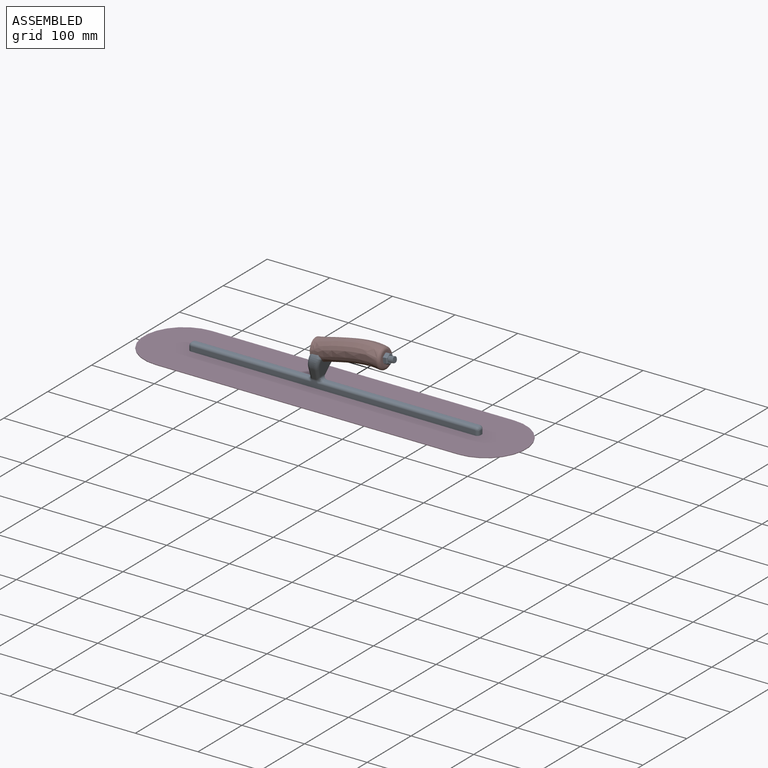
[diagram: assembled view]
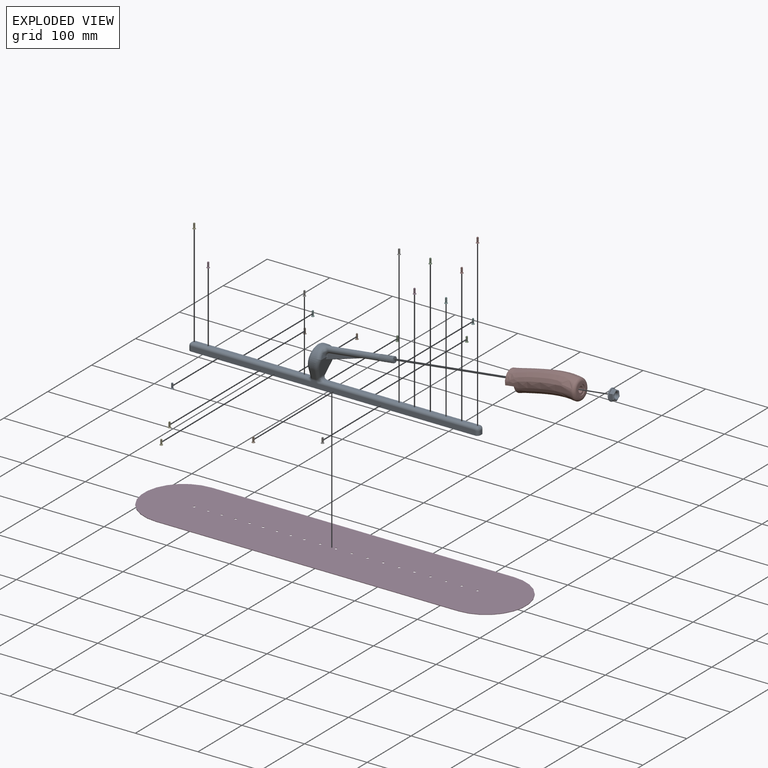
[diagram: exploded view]
GUIDED TOUR — MATED ASSEMBLY (Onshape document fba0291dfb014aeca8c67f5f, AutoMate assembly fba0291dfb014aeca8c67f5f_99a15173166ce8c87920e381_2d46dbb9390a50c2f02a5862_default)

This assembly has 24 components, labeled P0..P23 below (a component is one placed occurrence of a part; the same part can appear more than once), held together by 23 mates. A mate is a constraint between two components; its type names the relative motion it leaves free:
  FASTENED — locks the two components together rigidly (no relative motion).
Axis/direction vectors are unit vectors and 'through' points are millimeter coordinates, both in the assembly's world frame.

MATES
  1. FASTENED "Fastened 13": P5 <-> P19, direction (0.000, 0.000, -1.000) through (25.44, 0.00, -0.91) mm
  2. FASTENED "Fastened 18": P18 <-> P19, direction (0.000, 0.000, -1.000) through (150.82, 0.00, -0.91) mm
  3. FASTENED "Fastened 16": P22 <-> P19, direction (0.000, 0.000, -1.000) through (100.86, 0.00, -0.91) mm
  4. FASTENED "Fastened 12": P1 <-> P19, direction (0.000, 0.000, -1.000) through (0.17, 0.00, -0.91) mm
  5. FASTENED "Fastened 1": P19 <-> P0, direction (0.000, 0.000, 1.000) through (-226.16, 0.00, 0.00) mm
  6. FASTENED "Fastened 3": P11 <-> P19, direction (0.000, 0.000, -1.000) through (-203.81, 0.00, -0.91) mm
  7. FASTENED "Fastened 22": P7 <-> P0, direction (-0.993, 0.000, -0.122) through (-16.65, -0.06, 57.83) mm
  8. FASTENED "Fastened 8": P12 <-> P19, direction (0.000, 0.000, -1.000) through (-94.01, 0.00, -0.91) mm
  9. FASTENED "Fastened 6": P9 <-> P19, direction (0.000, 0.000, -1.000) through (-137.67, 0.00, -0.91) mm
  10. FASTENED "Fastened 15": P14 <-> P19, direction (0.000, 0.000, -1.000) through (75.56, 0.00, -0.91) mm
  11. FASTENED "Fastened 2": P20 <-> P19, direction (0.000, 0.000, -1.000) through (-226.16, 0.00, -0.91) mm
  12. FASTENED "Fastened 17": P3 <-> P19, direction (0.000, 0.000, -1.000) through (125.52, 0.00, -0.91) mm
  13. FASTENED "Fastened 10": P6 <-> P19, direction (0.000, 0.000, -1.000) through (-50.19, 0.00, -0.91) mm
  14. FASTENED "Fastened 9": P17 <-> P19, direction (0.000, 0.000, -1.000) through (-71.93, 0.00, -0.91) mm
  15. FASTENED "Fastened 23": P16 <-> P7, direction (-0.993, 0.000, -0.122) through (78.95, -0.06, 69.57) mm
  16. FASTENED "Fastened 5": P13 <-> P19, direction (0.000, 0.000, -1.000) through (-159.92, 0.00, -0.91) mm
  17. FASTENED "Fastened 19": P21 <-> P19, direction (0.000, 0.000, -1.000) through (175.86, 0.00, -0.91) mm
  18. FASTENED "Fastened 7": P4 <-> P19, direction (0.000, 0.000, -1.000) through (-116.05, 0.00, -0.91) mm
  19. FASTENED "Fastened 21": P23 <-> P19, direction (0.000, 0.000, -1.000) through (226.13, 0.00, -0.91) mm
  20. FASTENED "Fastened 20": P15 <-> P19, direction (0.000, 0.000, -1.000) through (200.93, 0.00, -0.91) mm
  21. FASTENED "Fastened 4": P8 <-> P19, direction (0.000, 0.000, -1.000) through (-182.09, 0.00, -0.91) mm
  22. FASTENED "Fastened 14": P2 <-> P19, direction (0.000, 0.000, -1.000) through (50.54, 0.00, -0.91) mm
  23. FASTENED "Fastened 11": P10 <-> P19, direction (0.000, 0.000, -1.000) through (-24.97, 0.00, -0.91) mm

ASSEMBLY ORDER
  1. P0 — the base component [order heuristic]
  2. P7 — core [order heuristic]
  3. P16 — core [order heuristic]
  4. P6 [order verified]
  5. P22 [order verified]
  6. P18 [order verified]
  7. P15 [order verified]
  8. P11 [order verified]
  9. P1 [order verified]
  10. P21 [order verified]
  11. P3 [order verified]
  12. P23 [order verified]
  13. P20 [order verified]
  14. P12 [order verified]
  15. P8 [order verified]
  16. P4 [order verified]
  17. P14 [order verified]
  18. P2 [order verified]
  19. P5 [order verified]
  20. P17 [order verified]
  21. P10 [order verified]
  22. P9 [order verified]
  23. P13 [order verified]
  24. P19 [order verified]
(P1, P3, P6, P11, P15, P18, P20, P21, P22, P23 verified with a relaxed clearance tolerance: the source model stores slight part interference there.)
Order-tag legend:
  [order verified] — this step's position reverses a verified removal order: the component was checked to insert without passing through the ones already placed.
  [order heuristic] — the first 3 components form the assembly's core: parts whose collision-free extraction could not be verified, listed in mate-graph order.

Of the 24 components, 1 carries the full construction recipe — the FeatureScript program that regenerates the part's solid from scratch; the rest are supplied as boundary geometry only.
Because this assembly has more than 12 components, the tour below covers the 12 most significant ones individually (every recipe-attached component first, then the largest by part volume), in assembly order; the remaining 12 are summarized together in a grouped section at the end.
Each toured component is shown spotlighted twice — in the assembled view, then in the exploded view, where a leader line traces a displaced component back to its assembled socket (saturated green if recipe-attached, orange if geometry-only; every other component desaturated gray) — followed by its recipe or geometry summary and the mates that hold it.
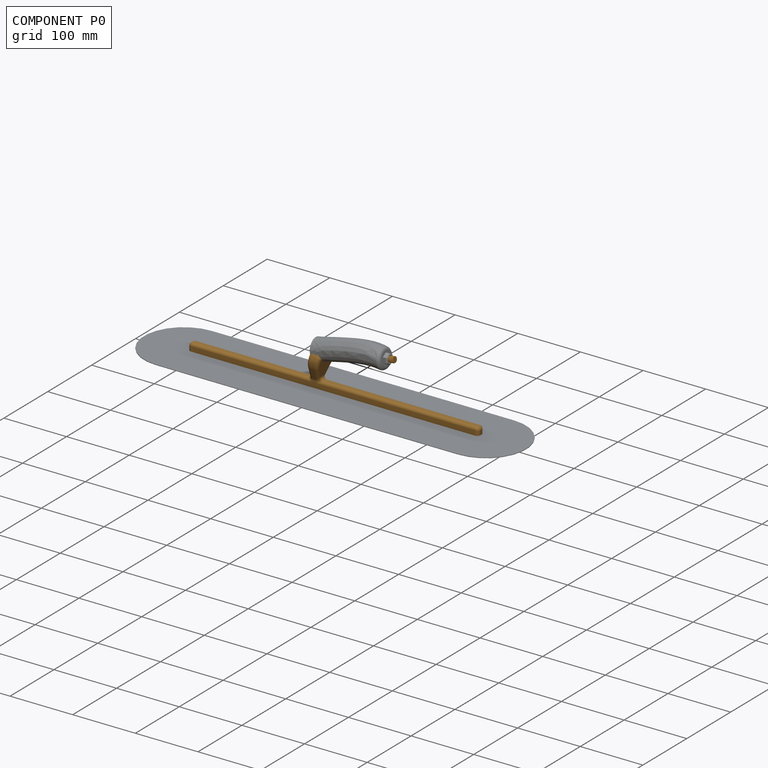
[diagram: component P0 — assembled]
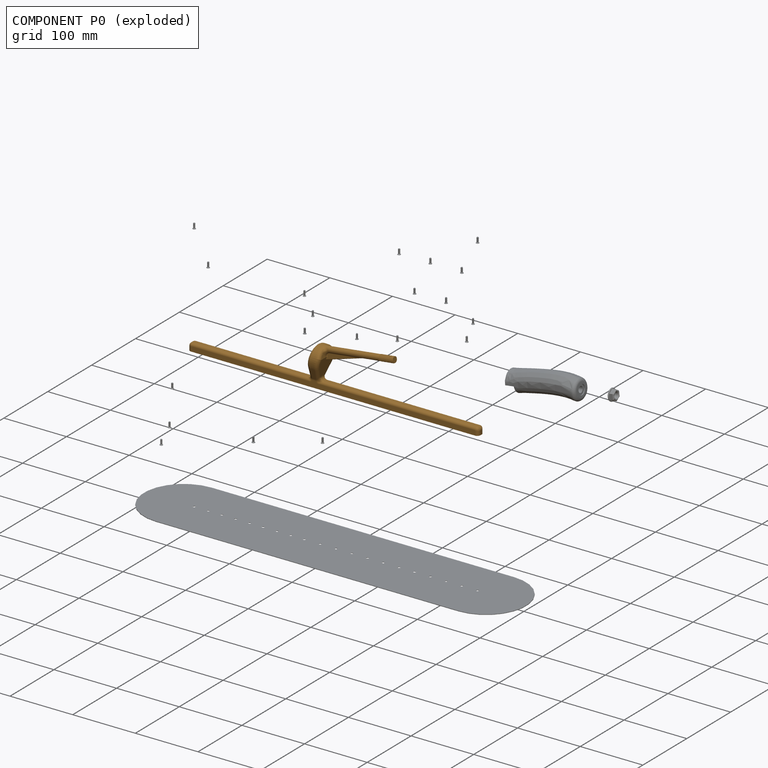
[diagram: component P0 — exploded]
COMPONENT P0 — geometry summary (no construction recipe available for this part):
  bounding box: 464.3 x 77.7 x 41.5 mm
  B-rep topology: 1 solid, 130 faces, 606 edges
  volume: 99625 mm^3 (7% of its bounding box)
  symmetry: mirror-symmetric across its y mid-plane
Held by: FASTENED mate "Fastened 1" to P19; FASTENED mate "Fastened 22" to P7.
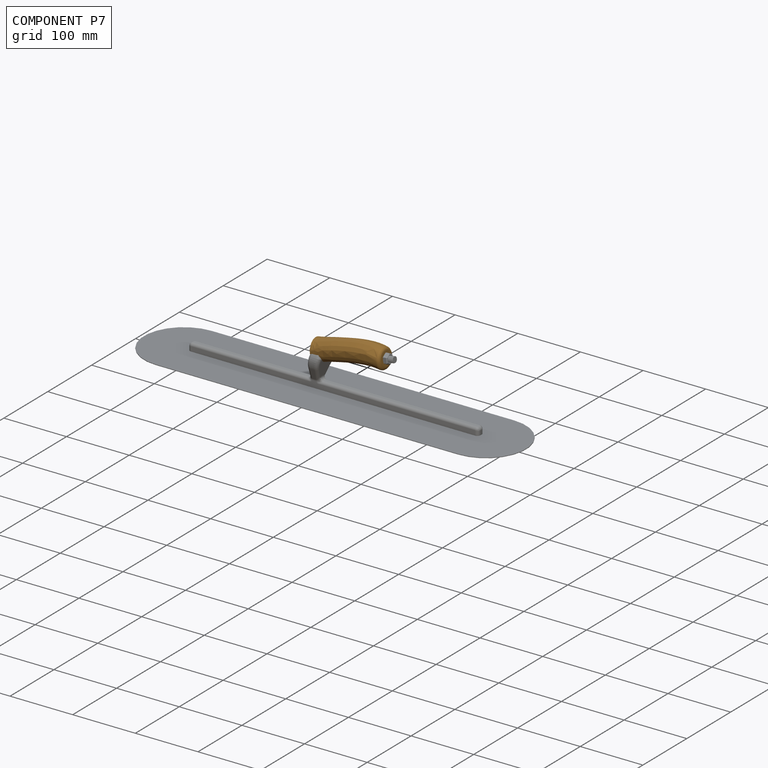
[diagram: component P7 — assembled]
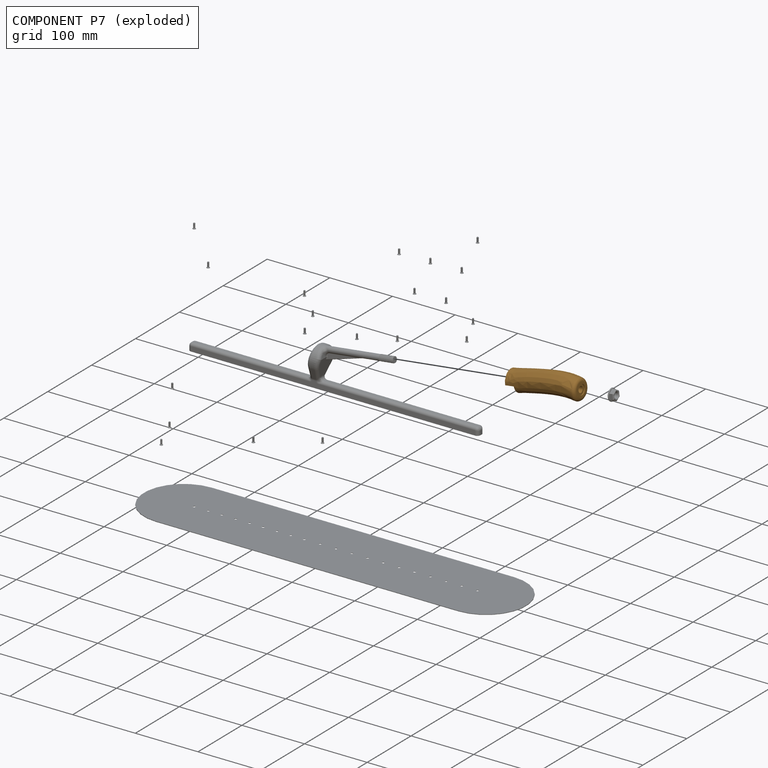
[diagram: component P7 — exploded]
COMPONENT P7 — geometry summary (no construction recipe available for this part):
  bounding box: 111.9 x 38.8 x 33.2 mm
  B-rep topology: 0 solids, 10 faces, 39 edges
  volume: 89827 mm^3 (62% of its bounding box)
  symmetry: mirror-symmetric across its y mid-plane
Held by: FASTENED mate "Fastened 22" to P0; FASTENED mate "Fastened 23" to P16.
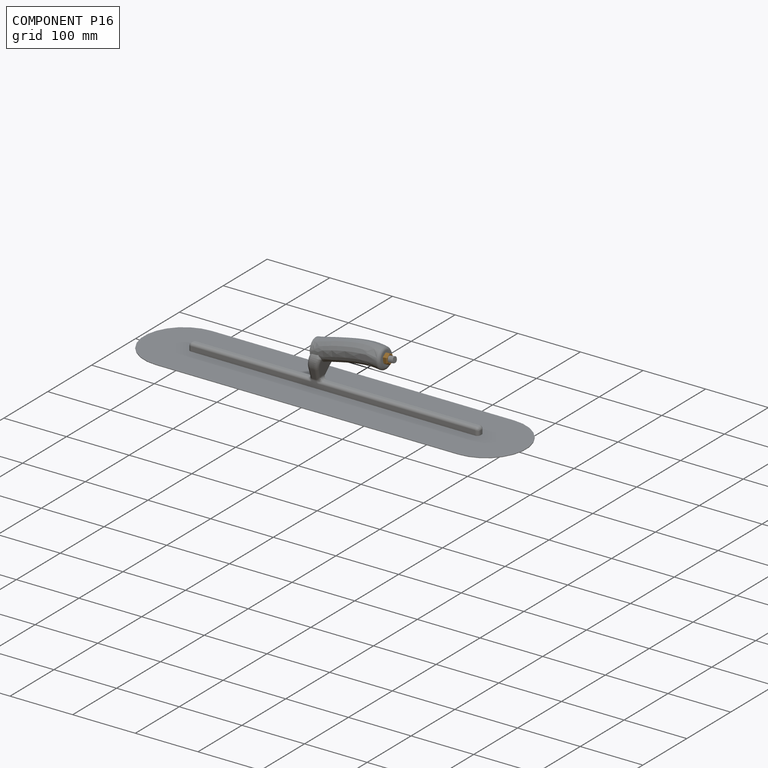
[diagram: component P16 — assembled]
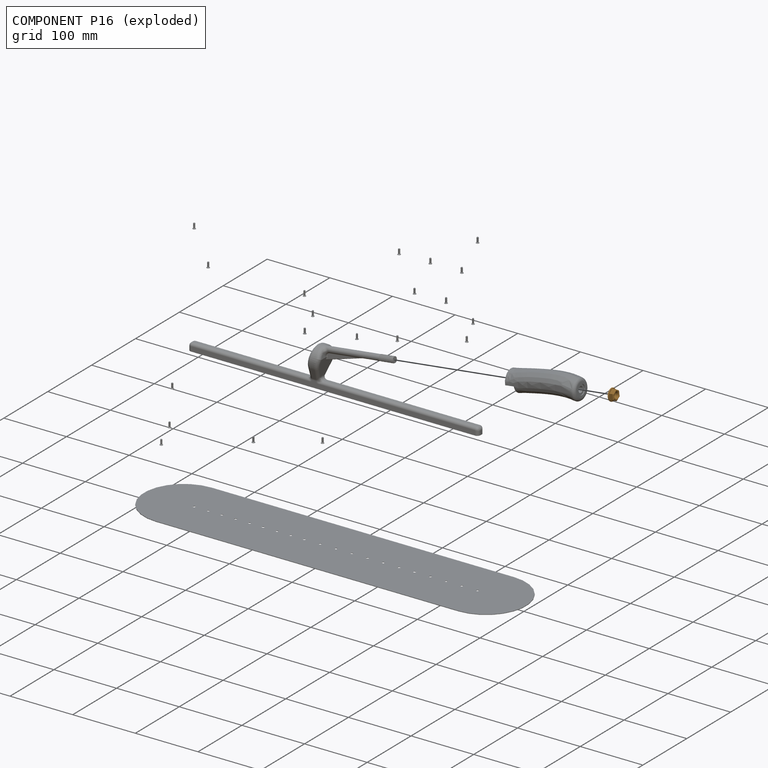
[diagram: component P16 — exploded]
COMPONENT P16 — geometry summary (no construction recipe available for this part):
  bounding box: 20.3 x 20.3 x 7.8 mm
  B-rep topology: 1 solid, 25 faces, 118 edges
  volume: 1025 mm^3 (32% of its bounding box)
  symmetry: 6-fold rotationally symmetric about the z axis; mirror-symmetric across its x mid-plane, y mid-plane
Held by: FASTENED mate "Fastened 23" to P7.
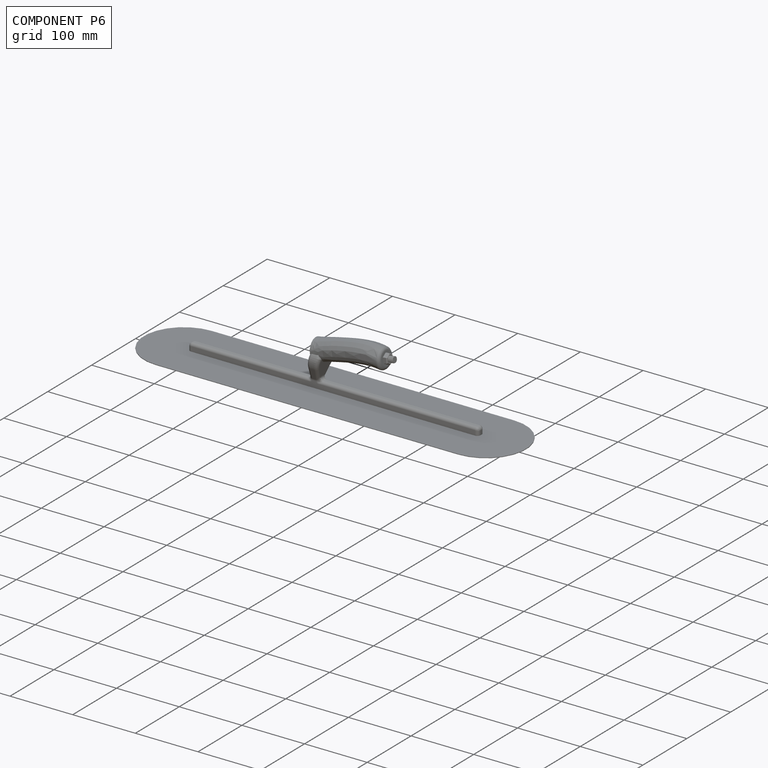
[diagram: component P6 — assembled]
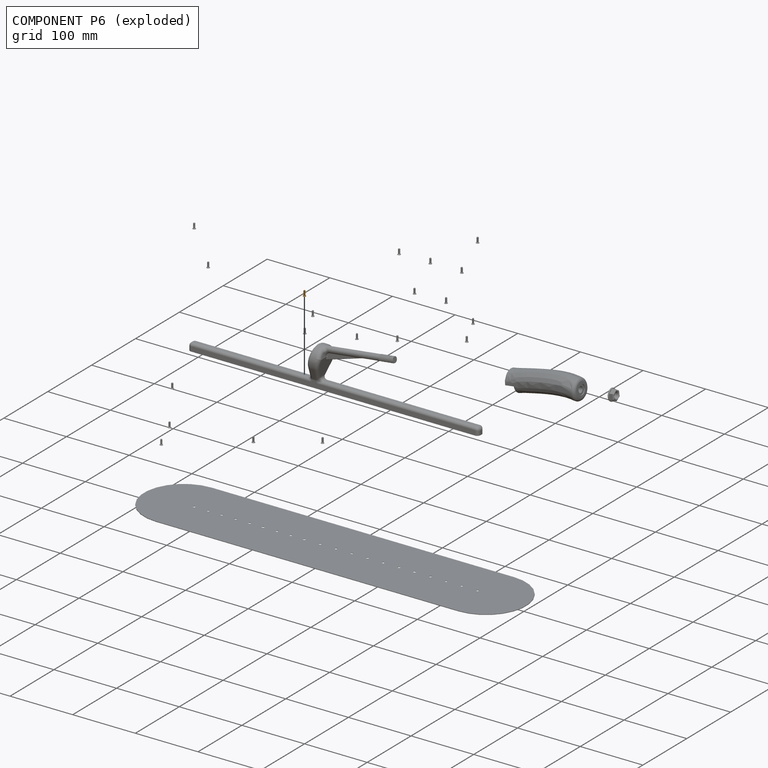
[diagram: component P6 — exploded]
COMPONENT P6 — geometry summary (no construction recipe available for this part):
  bounding box: 8.3 x 4.8 x 4.8 mm
  B-rep topology: 1 solid, 165 faces, 746 edges
  volume: 56 mm^3 (29% of its bounding box)
  symmetry: revolution-symmetric about the z axis through its bounding-box center; mirror-symmetric across its x mid-plane, y mid-plane
Held by: FASTENED mate "Fastened 10" to P19.
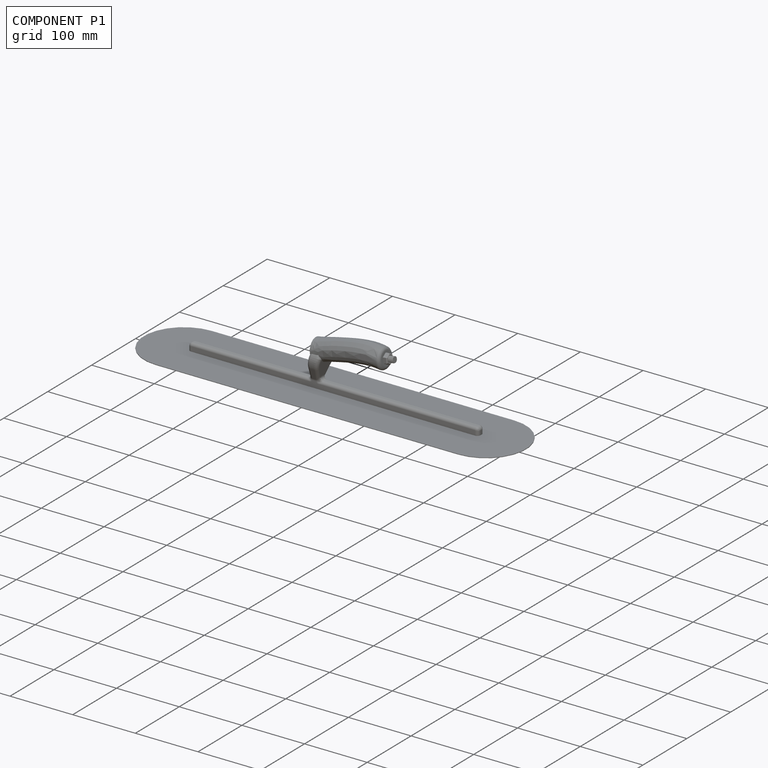
[diagram: component P1 — assembled]
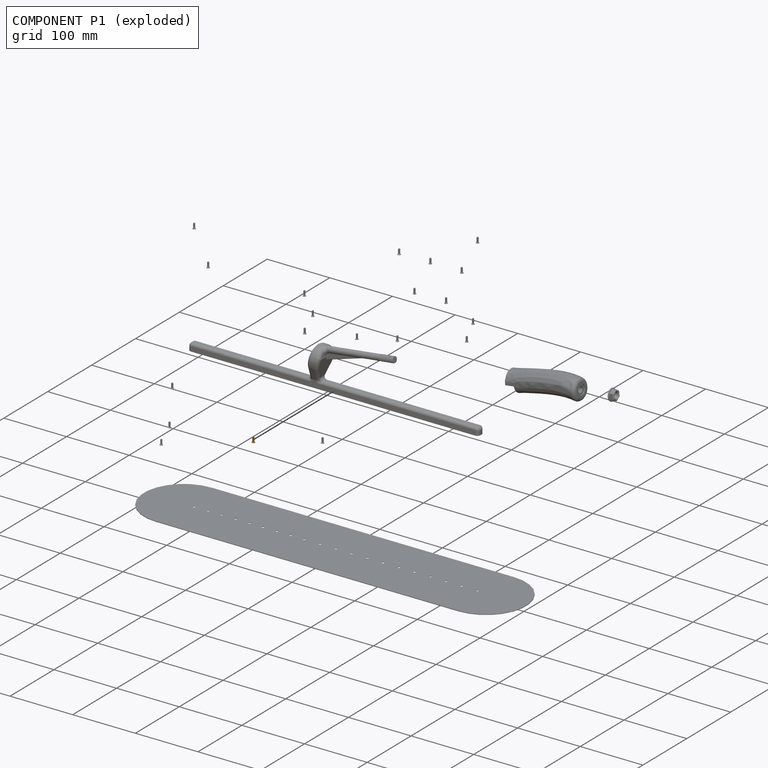
[diagram: component P1 — exploded]
COMPONENT P1 — geometry summary (no construction recipe available for this part):
  bounding box: 8.3 x 4.8 x 4.8 mm
  B-rep topology: 1 solid, 165 faces, 746 edges
  volume: 56 mm^3 (29% of its bounding box)
  symmetry: revolution-symmetric about the z axis through its bounding-box center; mirror-symmetric across its x mid-plane, y mid-plane
Held by: FASTENED mate "Fastened 12" to P19.
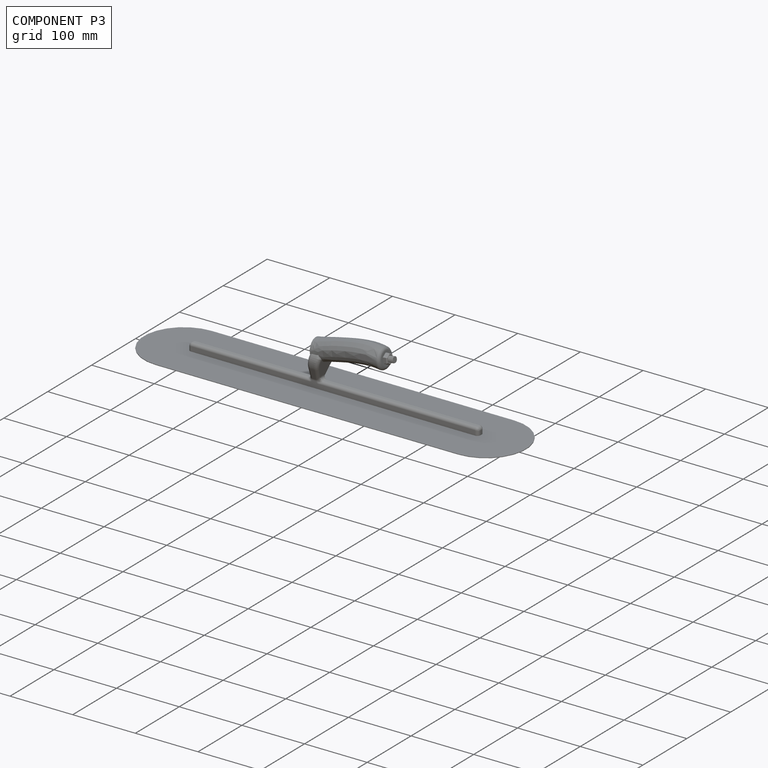
[diagram: component P3 — assembled]
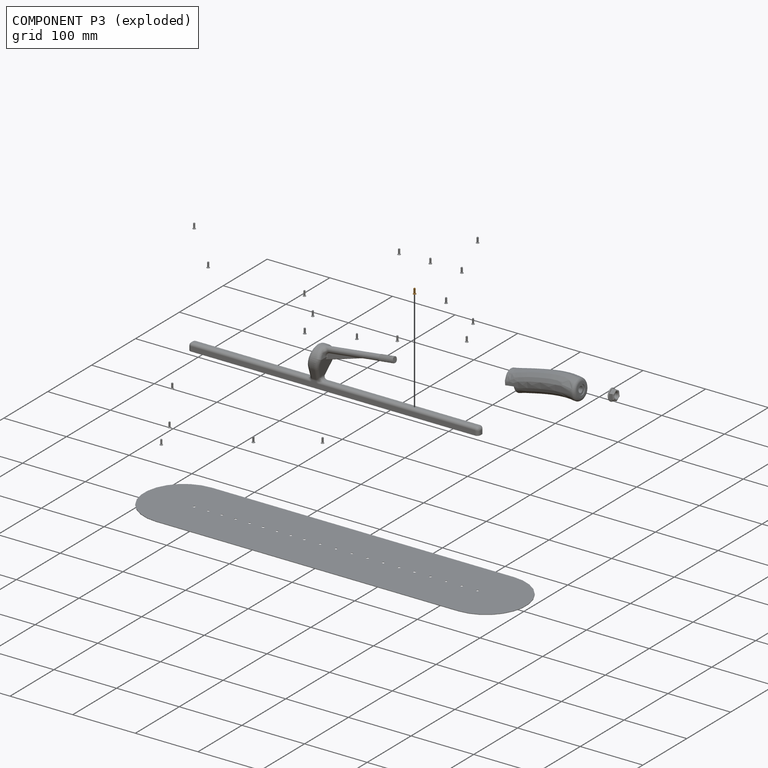
[diagram: component P3 — exploded]
COMPONENT P3 — geometry summary (no construction recipe available for this part):
  bounding box: 8.3 x 4.8 x 4.8 mm
  B-rep topology: 1 solid, 165 faces, 746 edges
  volume: 56 mm^3 (29% of its bounding box)
  symmetry: revolution-symmetric about the z axis through its bounding-box center; mirror-symmetric across its x mid-plane, y mid-plane
Held by: FASTENED mate "Fastened 17" to P19.
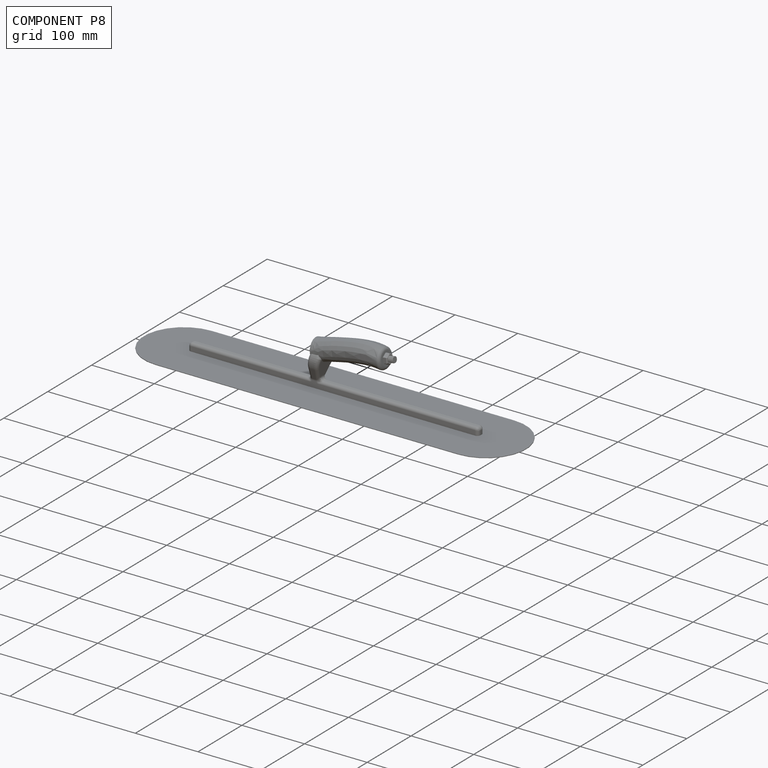
[diagram: component P8 — assembled]
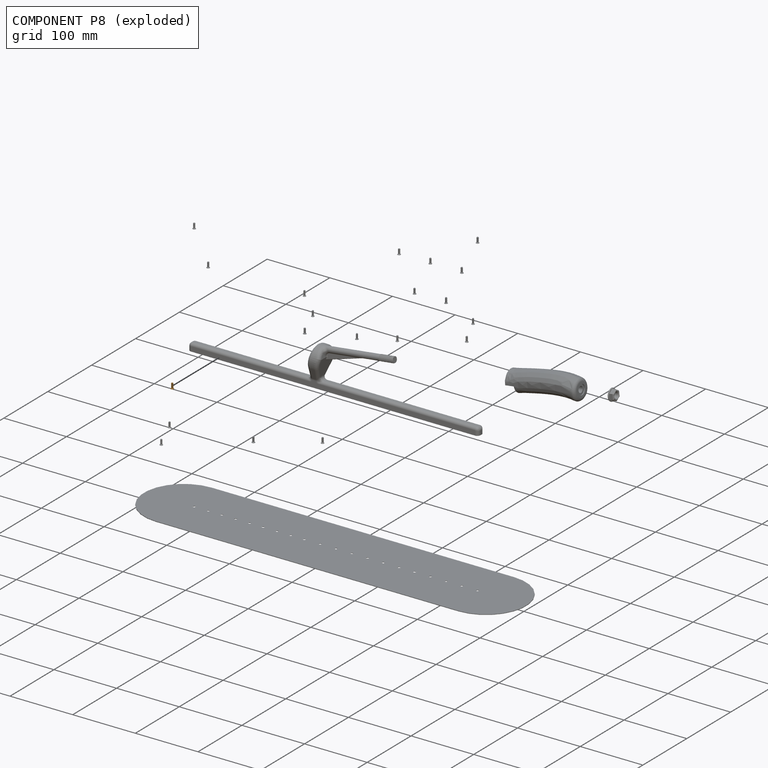
[diagram: component P8 — exploded]
COMPONENT P8 — geometry summary (no construction recipe available for this part):
  bounding box: 8.3 x 4.8 x 4.8 mm
  B-rep topology: 1 solid, 165 faces, 746 edges
  volume: 56 mm^3 (29% of its bounding box)
  symmetry: revolution-symmetric about the z axis through its bounding-box center; mirror-symmetric across its x mid-plane, y mid-plane
Held by: FASTENED mate "Fastened 4" to P19.
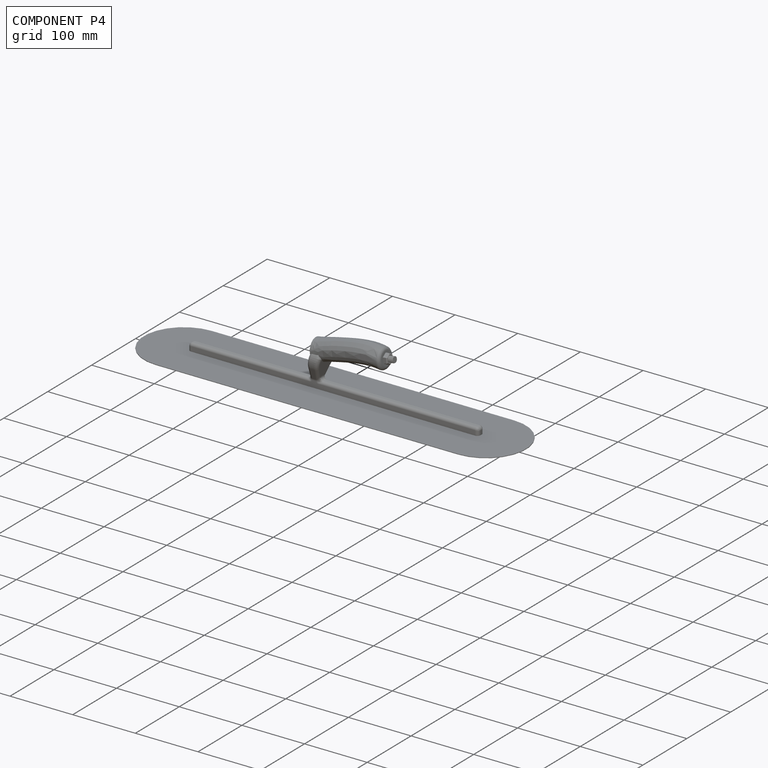
[diagram: component P4 — assembled]
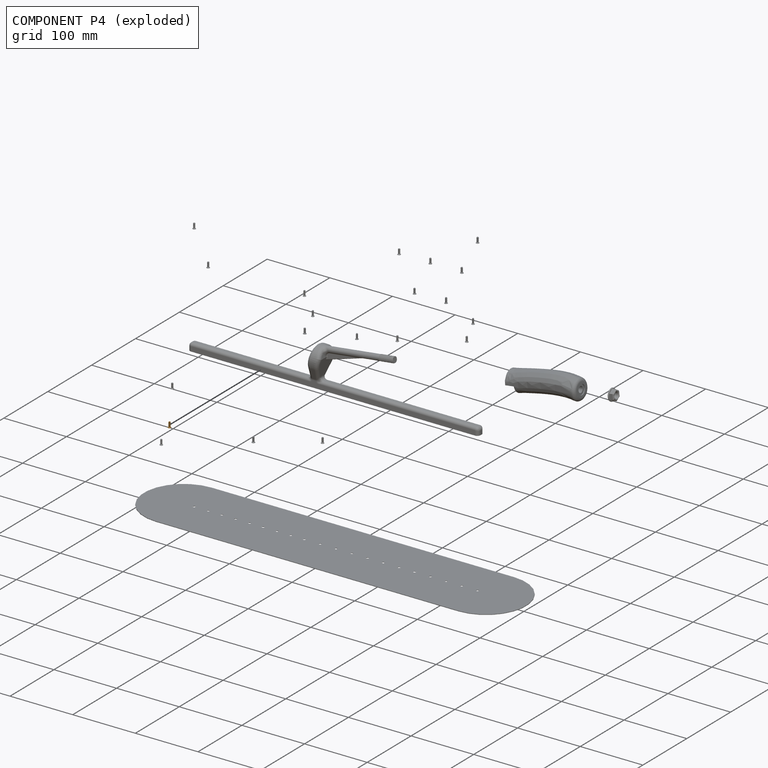
[diagram: component P4 — exploded]
COMPONENT P4 — geometry summary (no construction recipe available for this part):
  bounding box: 8.3 x 4.8 x 4.8 mm
  B-rep topology: 1 solid, 165 faces, 746 edges
  volume: 56 mm^3 (29% of its bounding box)
  symmetry: revolution-symmetric about the z axis through its bounding-box center; mirror-symmetric across its x mid-plane, y mid-plane
Held by: FASTENED mate "Fastened 7" to P19.
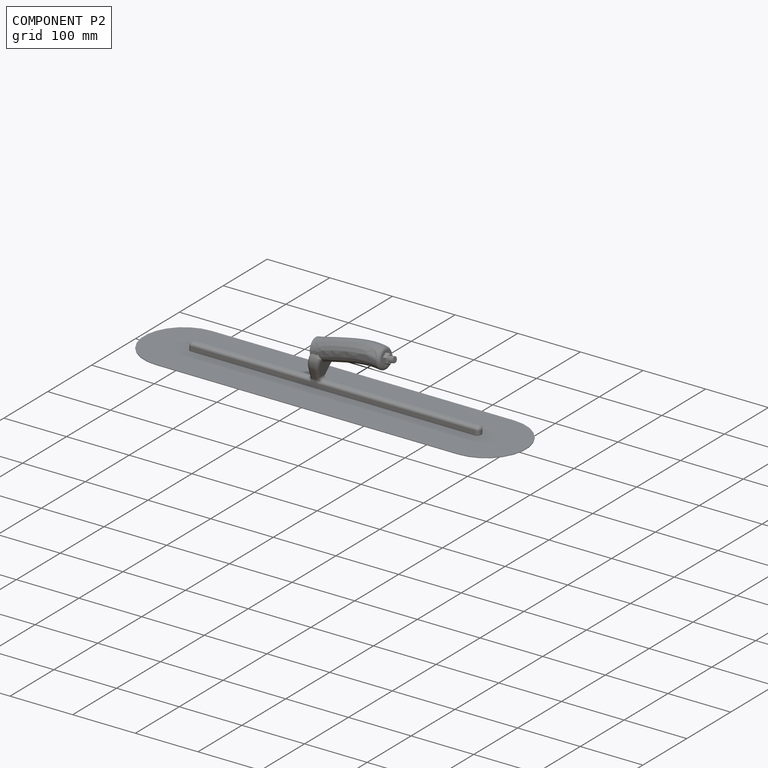
[diagram: component P2 — assembled]
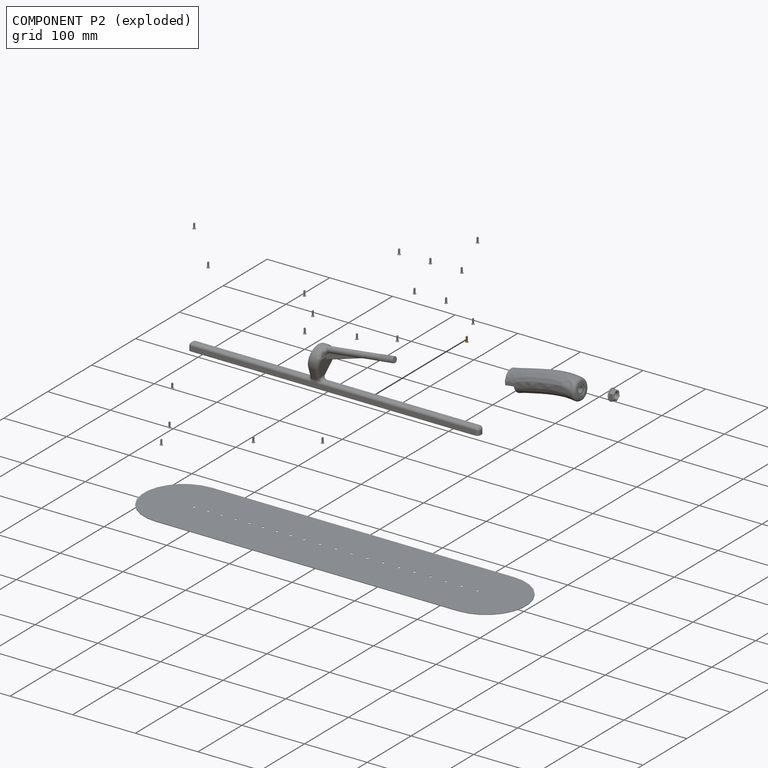
[diagram: component P2 — exploded]
COMPONENT P2 — geometry summary (no construction recipe available for this part):
  bounding box: 8.3 x 4.8 x 4.8 mm
  B-rep topology: 1 solid, 165 faces, 746 edges
  volume: 56 mm^3 (29% of its bounding box)
  symmetry: revolution-symmetric about the z axis through its bounding-box center; mirror-symmetric across its x mid-plane, y mid-plane
Held by: FASTENED mate "Fastened 14" to P19.
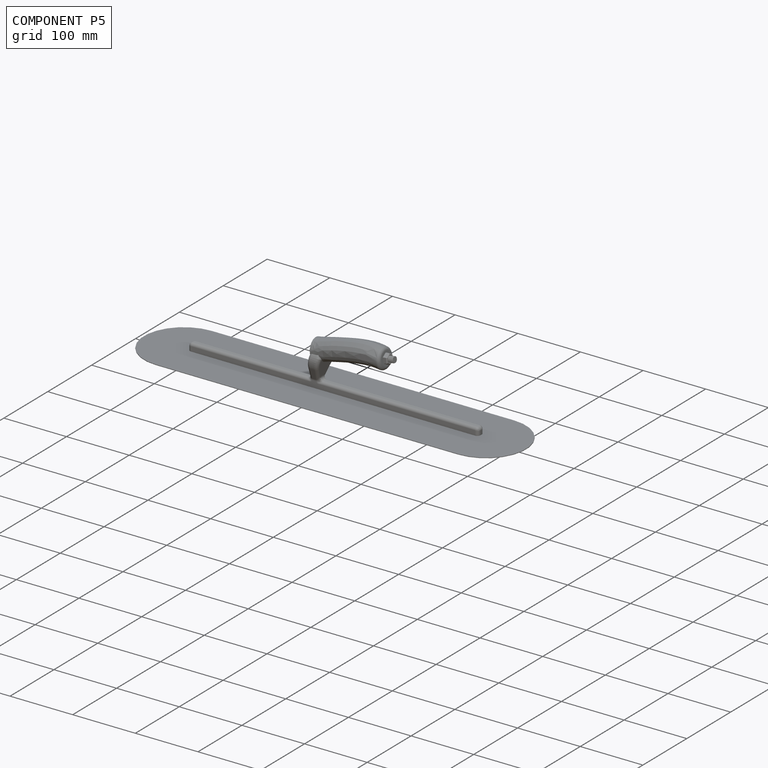
[diagram: component P5 — assembled]
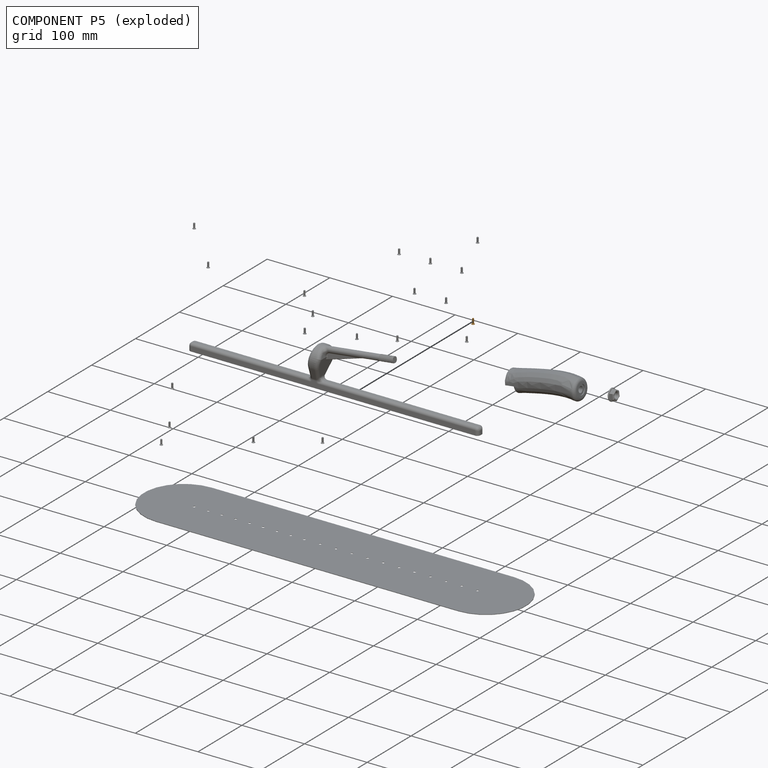
[diagram: component P5 — exploded]
COMPONENT P5 — geometry summary (no construction recipe available for this part):
  bounding box: 8.3 x 4.8 x 4.8 mm
  B-rep topology: 1 solid, 165 faces, 746 edges
  volume: 56 mm^3 (29% of its bounding box)
  symmetry: revolution-symmetric about the z axis through its bounding-box center; mirror-symmetric across its x mid-plane, y mid-plane
Held by: FASTENED mate "Fastened 13" to P19.
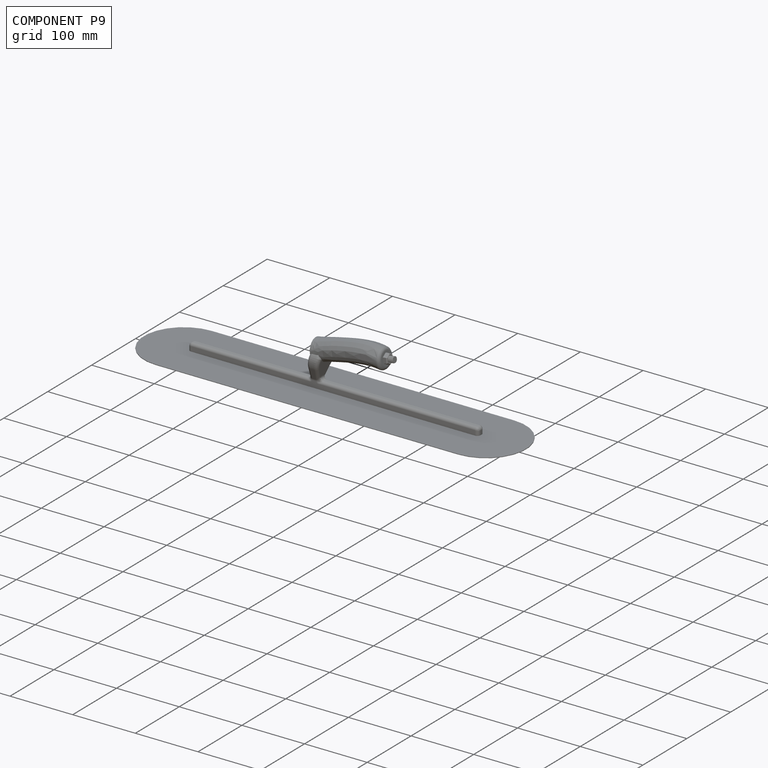
[diagram: component P9 — assembled]
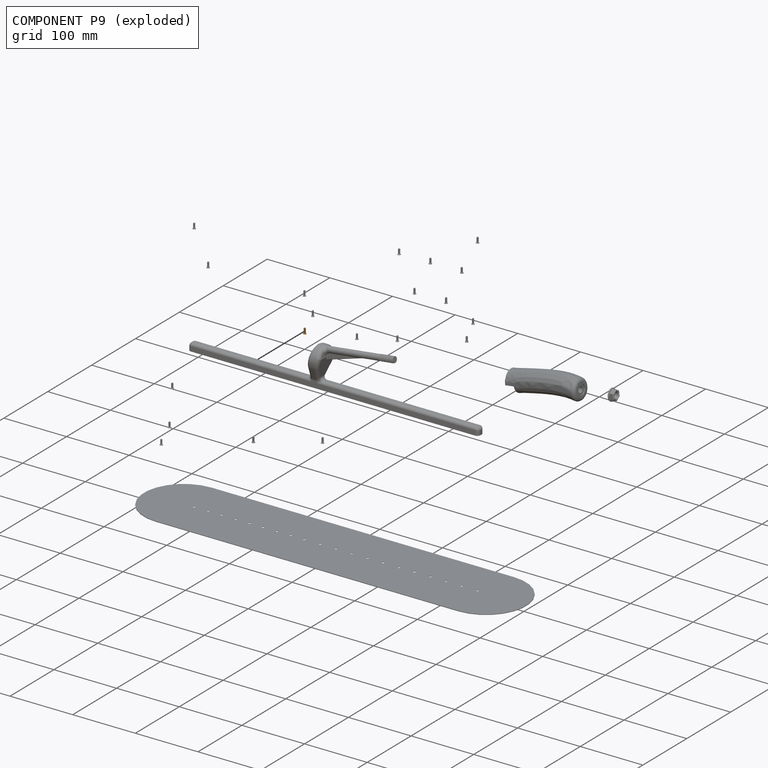
[diagram: component P9 — exploded]
COMPONENT P9 — geometry summary (no construction recipe available for this part):
  bounding box: 8.3 x 4.8 x 4.8 mm
  B-rep topology: 1 solid, 165 faces, 746 edges
  volume: 56 mm^3 (29% of its bounding box)
  symmetry: revolution-symmetric about the z axis through its bounding-box center; mirror-symmetric across its x mid-plane, y mid-plane
Held by: FASTENED mate "Fastened 6" to P19.
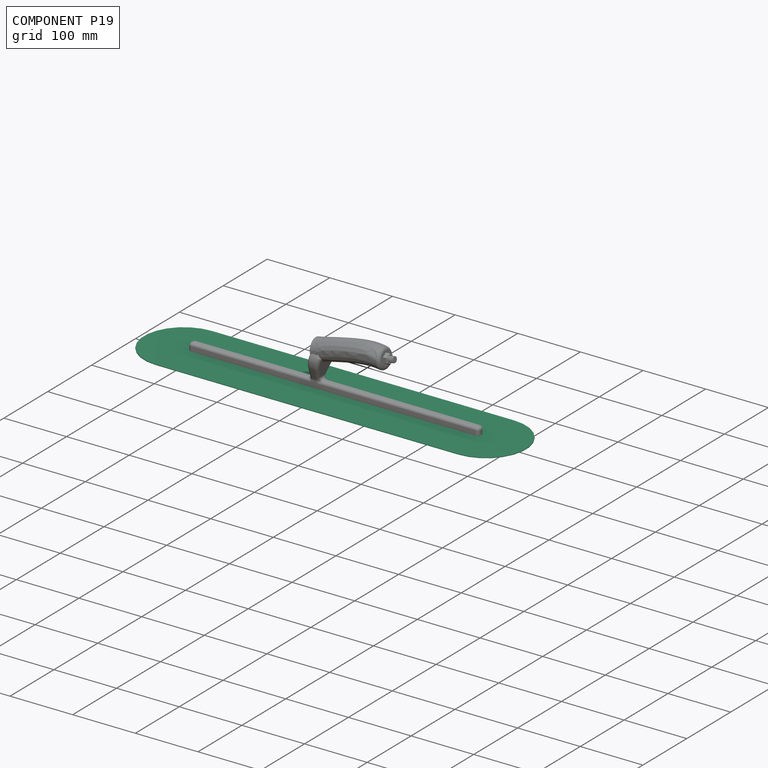
[diagram: component P19 — assembled]
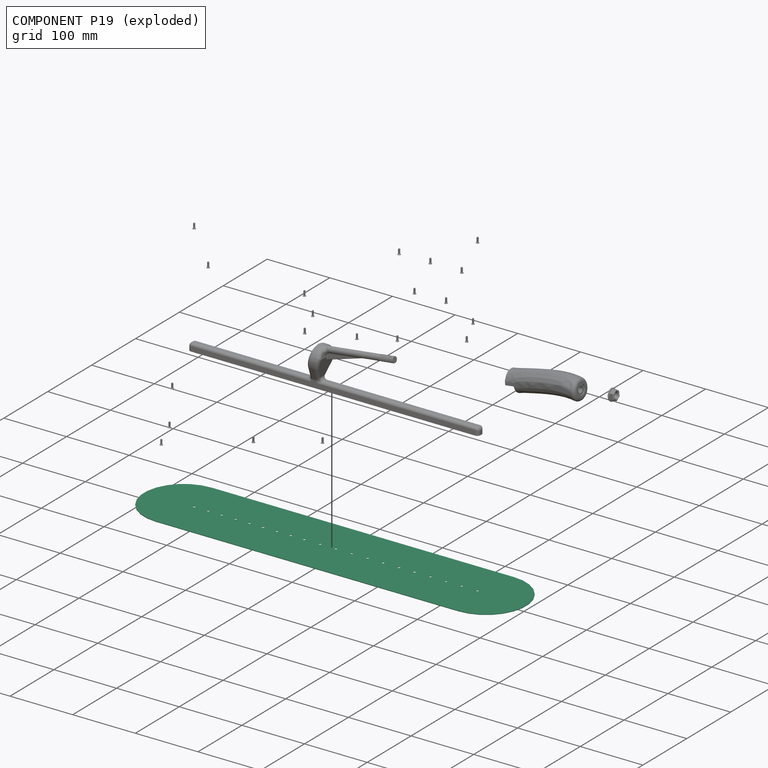
[diagram: component P19 — exploded]
COMPONENT P19 — recipe-attached (CADFS 00134731, mesh-verified: the recipe's output STEP matches this component's geometry to below the mesh-comparison resolution (tessellation chordal tolerance ~0.933 mm)).
Held by: FASTENED mate "Fastened 13" to P5; FASTENED mate "Fastened 18" to P18; FASTENED mate "Fastened 16" to P22; FASTENED mate "Fastened 12" to P1; FASTENED mate "Fastened 1" to P0; FASTENED mate "Fastened 3" to P11; FASTENED mate "Fastened 8" to P12; FASTENED mate "Fastened 6" to P9; FASTENED mate "Fastened 15" to P14; FASTENED mate "Fastened 2" to P20; FASTENED mate "Fastened 17" to P3; FASTENED mate "Fastened 10" to P6; FASTENED mate "Fastened 9" to P17; FASTENED mate "Fastened 5" to P13; FASTENED mate "Fastened 19" to P21; FASTENED mate "Fastened 7" to P4; FASTENED mate "Fastened 21" to P23; FASTENED mate "Fastened 20" to P15; FASTENED mate "Fastened 4" to P8; FASTENED mate "Fastened 14" to P2; FASTENED mate "Fastened 11" to P10.
Construction recipe (FeatureScript — the CAD program that rebuilds this solid; sketch coordinates are in the units given by the * unit suffixes, e.g. mm):

FeatureScript 1511;
import(path : "onshape/std/geometry.fs", version : "1511.0");
import(path : "onshape/std/common.fs", version : "1511.0");
const mm = millimeter;
const VERTEX = EntityType.VERTEX;
const EDGE = EntityType.EDGE;
const FACE = EntityType.FACE;
const BODY = EntityType.BODY;
function v(x, y){return vector(x, y);}
function OD(order){return orderDisambiguation(order);}
function OSD(set){return originalSetDisambiguation(set);}
function TD(topology){return topologyDisambiguation(topology);}
function TDD(query){return trueDependencyDisambiguation(query);}
function sQuery(a, b, c) {return sketchEntityQuery(a, b, c);}

annotation { "Feature Type Name" : "Feature", "Feature Type Description" : "" }
export const myFeature = defineFeature(function(context is Context, id is Id, definition is map)
    precondition{}
    {
        {
            var Q0;
            Q0=qCreatedBy(makeId("Top.planeOp"),FACE);
            var sketch = newSketch(context, id + "F0", { "sketchPlane" : qUnion([Q0])});
            skLineSegment(sketch, "E0", {"start": v(-241.3, 0) * mm, "end": v(241.3, 0) * mm, "construction": true});
            skArc(sketch, "E1.0.startCap", {"start": v(-241.3, -63.5) * mm, "mid": v(-304.8, 0) * mm, "end": v(-241.3, 63.5) * mm});
            skArc(sketch, "E1.0.endCap", {"start": v(241.3, 63.5) * mm, "mid": v(304.8, 0) * mm, "end": v(241.3, -63.5) * mm});
            skLineSegment(sketch, "E1.0.left", {"start": v(-241.3, 63.5) * mm, "end": v(241.3, 63.5) * mm});
            skLineSegment(sketch, "E1.0.right", {"start": v(-241.3, -63.5) * mm, "end": v(241.3, -63.5) * mm});
            skSolve(sketch);
        }
        {
            var Q0;
            Q0 = qSketchRegion(id + "F0", true);
            extrude(context, id + "F1", {"entities" : qUnion([Q0]), "depth" : 0.91 * mm});
        }
        {
            var Q0;
            Q0=makeQuery(id+"F1.opExtrude","CAP_FACE",FACE,{"disambiguationData":[OSD([sQuery(id+"F0.wireOp",EDGE,"E1.0.startCap"),sQuery(id+"F0.wireOp",EDGE,"E1.0.endCap"),sQuery(id+"F0.wireOp",EDGE,"E1.0.left"),sQuery(id+"F0.wireOp",EDGE,"E1.0.right")])],"isStart":false});
            var sketch = newSketch(context, id + "F2", { "sketchPlane" : qUnion([Q0])});
            skPoint(sketch, "E2", {"position": v(0.18, -2.06) * mm});
            skPoint(sketch, "E3", {"position": v(25.45, -2.06) * mm});
            skPoint(sketch, "E4", {"position": v(50.55, -2.06) * mm});
            skPoint(sketch, "E5", {"position": v(75.57, -2.06) * mm});
            skPoint(sketch, "E6", {"position": v(100.86, -2.06) * mm});
            skPoint(sketch, "E7", {"position": v(125.53, -2.06) * mm});
            skPoint(sketch, "E8", {"position": v(150.83, -2.06) * mm});
            skPoint(sketch, "E9", {"position": v(175.87, -2.06) * mm});
            skPoint(sketch, "E10", {"position": v(200.94, -2.06) * mm});
            skPoint(sketch, "E11", {"position": v(226.14, -2.06) * mm});
            skPoint(sketch, "E12", {"position": v(-24.96, -2.06) * mm});
            skPoint(sketch, "E13", {"position": v(-50.18, -2.06) * mm});
            skPoint(sketch, "E14", {"position": v(-159.91, -2.06) * mm});
            skPoint(sketch, "E15", {"position": v(-71.93, -2.06) * mm});
            skPoint(sketch, "E16", {"position": v(-226.16, -2.06) * mm});
            skPoint(sketch, "E17", {"position": v(-94, -2.06) * mm});
            skPoint(sketch, "E18", {"position": v(-203.8, -2.06) * mm});
            skPoint(sketch, "E19", {"position": v(-116.05, -2.06) * mm});
            skPoint(sketch, "E20", {"position": v(-182.09, -2.06) * mm});
            skPoint(sketch, "E21", {"position": v(-137.66, -2.06) * mm});
            skPoint(sketch, "E22.0", {"position": v(-304.8, 0) * mm});
            skPoint(sketch, "E23.0", {"position": v(304.8, 0) * mm});
            skSolve(sketch);
        }
        {
            var Q0;
            Q0=sQuery(id+"F2.wireOp",VERTEX,"E16");
            var Q1;
            Q1=sQuery(id+"F2.wireOp",VERTEX,"E18");
            var Q2;
            Q2=sQuery(id+"F2.wireOp",VERTEX,"E20");
            var Q3;
            Q3=sQuery(id+"F2.wireOp",VERTEX,"E14");
            var Q4;
            Q4=sQuery(id+"F2.wireOp",VERTEX,"E21");
            var Q5;
            Q5=sQuery(id+"F2.wireOp",VERTEX,"E19");
            var Q6;
            Q6=sQuery(id+"F2.wireOp",VERTEX,"E17");
            var Q7;
            Q7=sQuery(id+"F2.wireOp",VERTEX,"E15");
            var Q8;
            Q8=sQuery(id+"F2.wireOp",VERTEX,"E13");
            var Q9;
            Q9=sQuery(id+"F2.wireOp",VERTEX,"E12");
            var Q10;
            Q10=sQuery(id+"F2.wireOp",VERTEX,"E2");
            var Q11;
            Q11=sQuery(id+"F2.wireOp",VERTEX,"E3");
            var Q12;
            Q12=sQuery(id+"F2.wireOp",VERTEX,"E4");
            var Q13;
            Q13=sQuery(id+"F2.wireOp",VERTEX,"E5");
            var Q14;
            Q14=sQuery(id+"F2.wireOp",VERTEX,"E6");
            var Q15;
            Q15=sQuery(id+"F2.wireOp",VERTEX,"E7");
            var Q16;
            Q16=sQuery(id+"F2.wireOp",VERTEX,"E8");
            var Q17;
            Q17=sQuery(id+"F2.wireOp",VERTEX,"E9");
            var Q18;
            Q18=sQuery(id+"F2.wireOp",VERTEX,"E10");
            var Q19;
            Q19=sQuery(id+"F2.wireOp",VERTEX,"E11");
            var Q20;
            Q20=makeQuery(id+"F1.opExtrude","SWEPT_BODY",BODY,{"disambiguationData":[OSD([sQuery(id+"F0.wireOp",EDGE,"E1.0.startCap"),sQuery(id+"F0.wireOp",EDGE,"E1.0.endCap"),sQuery(id+"F0.wireOp",EDGE,"E1.0.left"),sQuery(id+"F0.wireOp",EDGE,"E1.0.right")])]});
            hole(context, id + "F3", {"style" : HoleStyle.C_SINK, "endStyle" : HoleEndStyle.THROUGH, "holeDiameter" : 3.56 * mm, "cSinkDiameter" : 4.83 * mm, "cSinkAngle" : 100 * degree, "majorDiameter" : 6.35 * mm, "locations" : qUnion([Q0, Q1, Q2, Q3, Q4, Q5, Q6, Q7, Q8, Q9, Q10, Q11, Q12, Q13, Q14, Q15, Q16, Q17, Q18, Q19]), "scope" : qUnion([Q20]), "isTappedThrough" : true, "tappedDepth" : 12.7 * mm, "tapClearance" : 3});
        }
    });
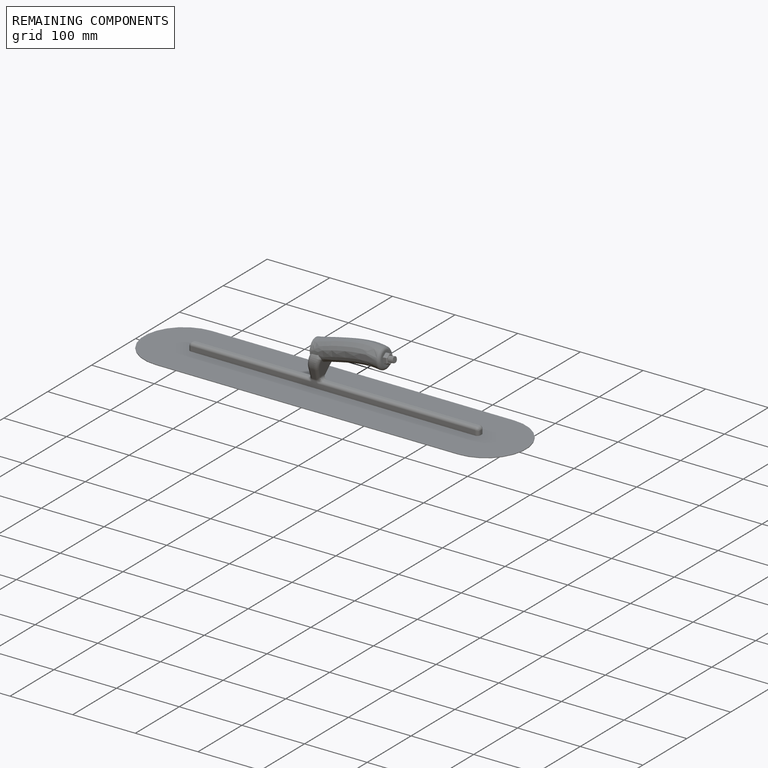
[diagram: remaining components — assembled]
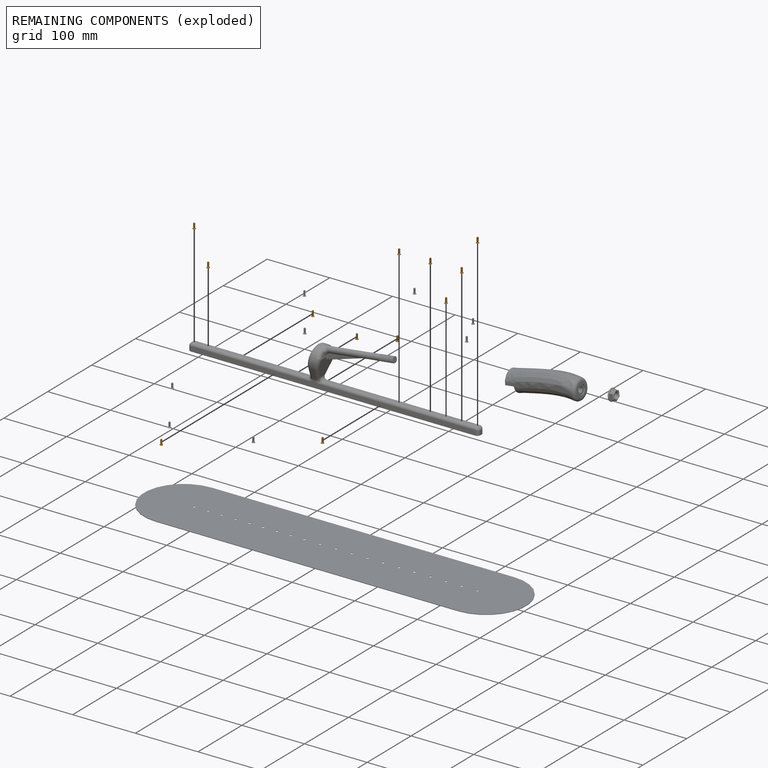
[diagram: remaining components — exploded]
REMAINING COMPONENTS (grouped) — the 12 components below fall outside the per-component tour by the significance rule stated above; both spotlight views highlight the whole group.
  P22: bounding box 8.3 x 4.8 x 4.8 mm, volume 56 mm^3. Held by: FASTENED mate "Fastened 16" to P19.
  P18: bounding box 8.3 x 4.8 x 4.8 mm, volume 56 mm^3. Held by: FASTENED mate "Fastened 18" to P19.
  P15: bounding box 8.3 x 4.8 x 4.8 mm, volume 56 mm^3. Held by: FASTENED mate "Fastened 20" to P19.
  P11: bounding box 8.3 x 4.8 x 4.8 mm, volume 56 mm^3. Held by: FASTENED mate "Fastened 3" to P19.
  P21: bounding box 8.3 x 4.8 x 4.8 mm, volume 56 mm^3. Held by: FASTENED mate "Fastened 19" to P19.
  P23: bounding box 8.3 x 4.8 x 4.8 mm, volume 56 mm^3. Held by: FASTENED mate "Fastened 21" to P19.
  P20: bounding box 8.3 x 4.8 x 4.8 mm, volume 56 mm^3. Held by: FASTENED mate "Fastened 2" to P19.
  P12: bounding box 8.3 x 4.8 x 4.8 mm, volume 56 mm^3. Held by: FASTENED mate "Fastened 8" to P19.
  P14: bounding box 8.3 x 4.8 x 4.8 mm, volume 56 mm^3. Held by: FASTENED mate "Fastened 15" to P19.
  P17: bounding box 8.3 x 4.8 x 4.8 mm, volume 56 mm^3. Held by: FASTENED mate "Fastened 9" to P19.
  P10: bounding box 8.3 x 4.8 x 4.8 mm, volume 56 mm^3. Held by: FASTENED mate "Fastened 11" to P19.
  P13: bounding box 8.3 x 4.8 x 4.8 mm, volume 56 mm^3. Held by: FASTENED mate "Fastened 5" to P19.
PROVENANCE & LICENSES
Assembly (occurrences, transforms, mates, per-part STEP geometry): AutoMate dataset, Zenodo record 7776208, CC0.
Construction recipes: CADFS (HuggingFace VladPyatov/CADFS, CC-BY-4.0, layered over the ABC dataset), FeatureScript reconstruction programs keyed by ABC model id.
Join: ABC meta listings map ABC model id -> Onshape documentId; within a shared document, parts are matched by geometric signature (bounding-box dims + volume at 0.1% relative tolerance, exact B-rep face/solid counts).
Verification: 1 of this assembly's 24 components carries a recipe attachment, and every attachment is mesh-verified: the CADFS STEP and the AutoMate member STEP were compared as meshes in their shared local frame (symmetric sampled-point-to-mesh distance); worst across the 1 attachment: below the mesh-comparison resolution (tessellation chordal tolerance ~0.933 mm) on a 622 mm part.
Renders: orthographic iso camera (az 35 / el 25); the floor grid conveys scale (grid pitch printed in each image; no ruler). In the exploded view each component is displaced by its stored offset vector: the offsets alone carry the explosion direction (mate normal/axis signs are not orientation cues and do not encode it), and separation distances are assigned per mate-chain, not proportionally to assembly-order depth.
